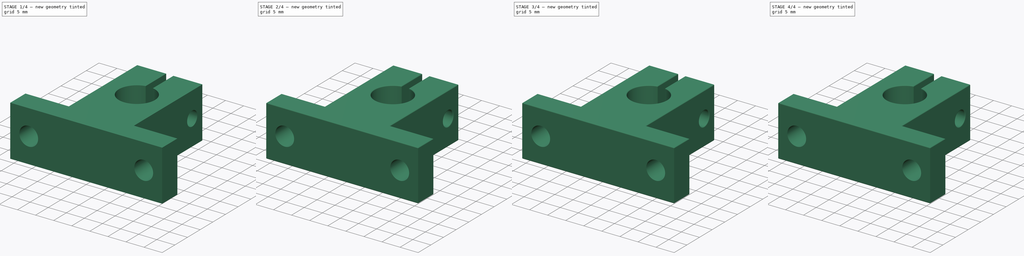
[diagram: build sequence overview — one tinted view per stage of 4, left to right]
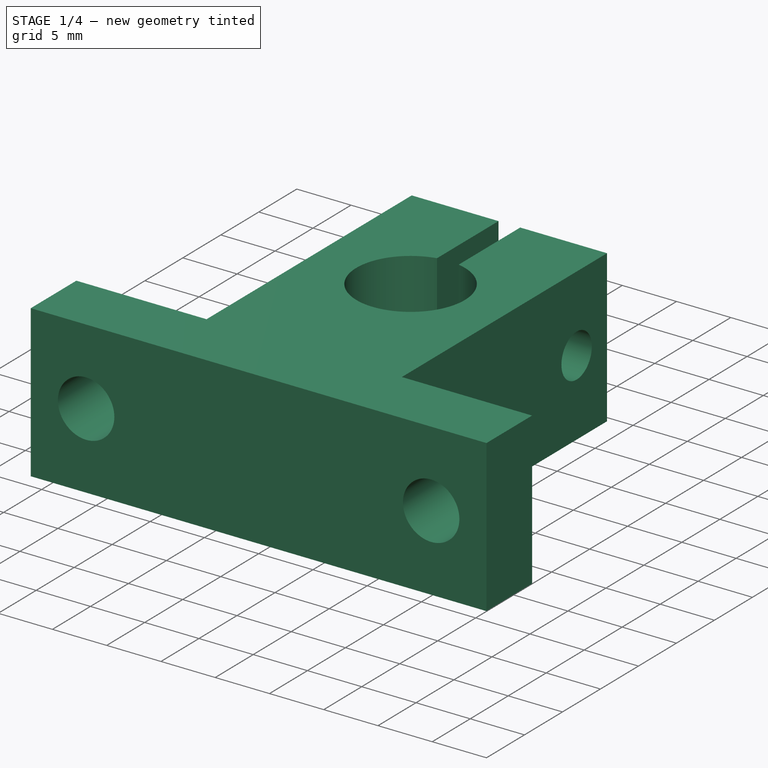
[diagram: stage 1 of 4 — iso view after this stage's code; geometry added in this stage tinted green]
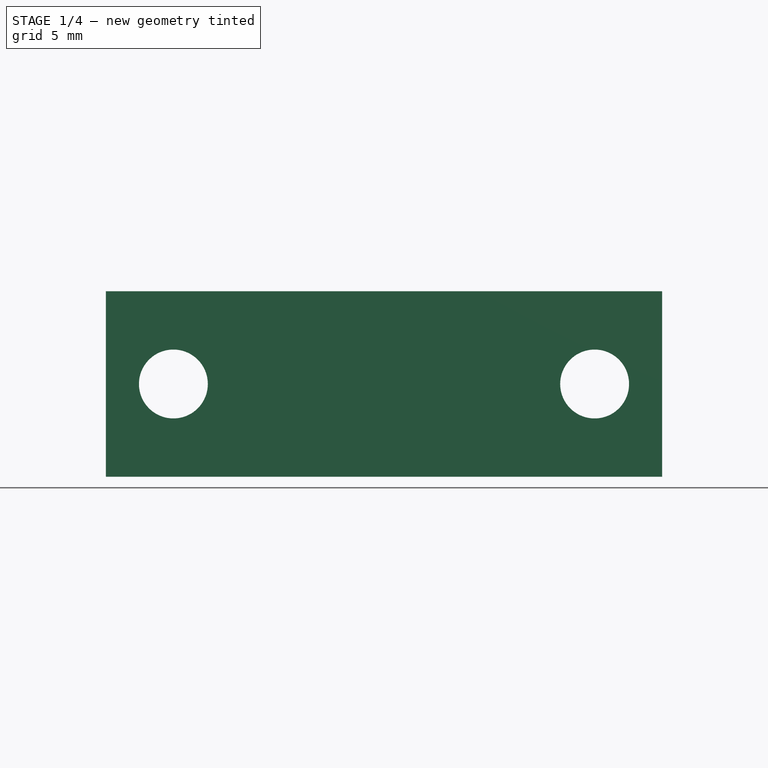
[diagram: stage 1 of 4 — front view after this stage's code; geometry added in this stage tinted green]
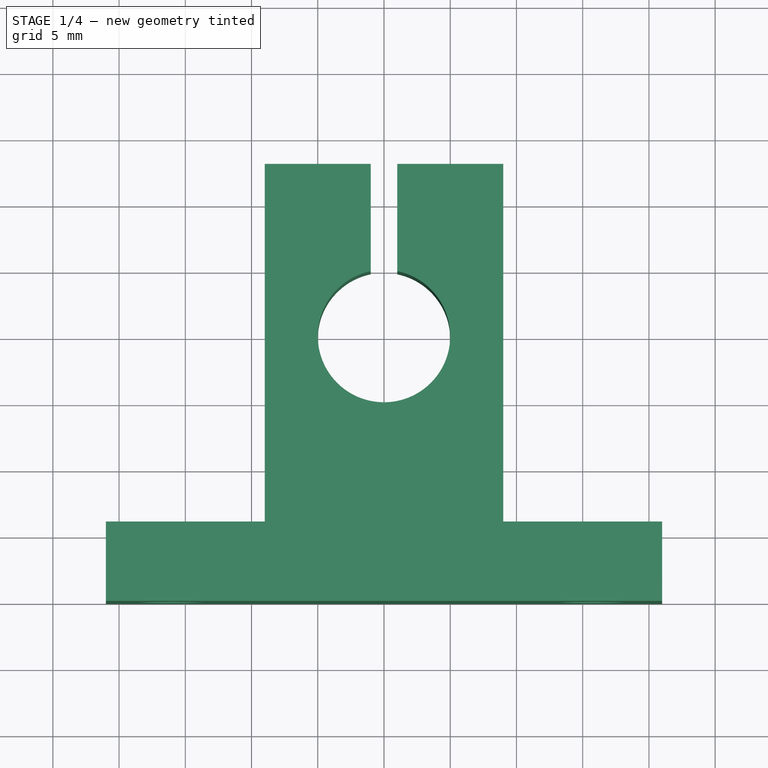
[diagram: stage 1 of 4 — top view after this stage's code; geometry added in this stage tinted green]
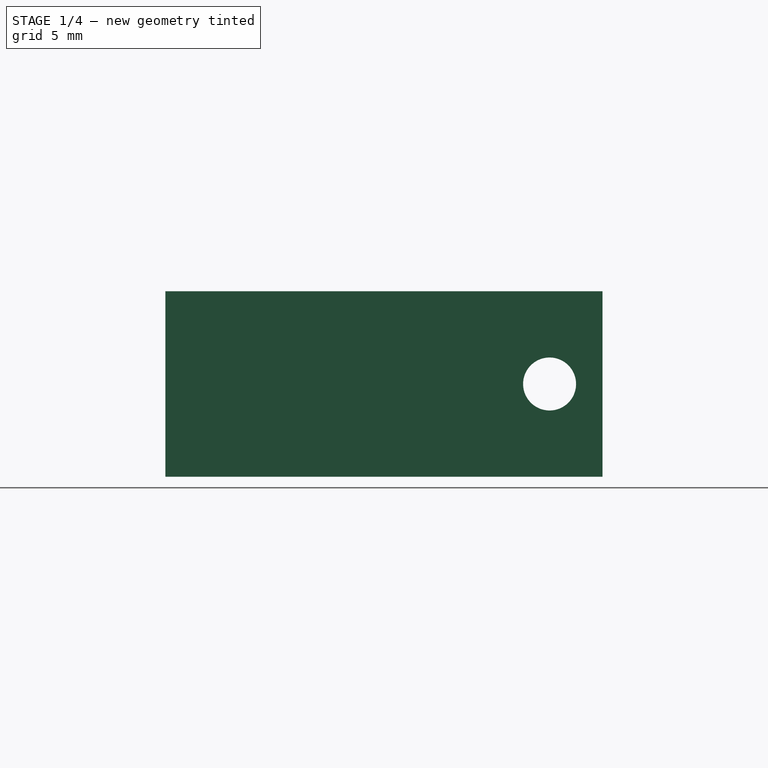
[diagram: stage 1 of 4 — right view after this stage's code; geometry added in this stage tinted green]
FCSTD DOCUMENT  (FreeCAD 0.14R3703 (Git))
Label: SK10
License: CC-BY 3.0
LicenseURL: http://creativecommons.org/licenses/by/3.0/
objects: PartDesign::Fillet×10, Sketcher::SketchObject×3, PartDesign::Pocket×2, PartDesign::Pad×1, Part::Feature×1
note: 20 computed .brp shape members not serialized (recipe doc carries the construction recipe); baked Part::Feature solids carry a one-line shape summary decoded from their .brp

FEATURE [Sketcher::SketchObject] Sketch
  sketch-geometry (13):
    g0: LineSegment StartX=9 StartY=13 StartZ=0 EndX=9 EndY=-14 EndZ=0
    g1: LineSegment StartX=9 StartY=-14 StartZ=0 EndX=21 EndY=-14 EndZ=0
    g2: LineSegment StartX=21 StartY=-14 StartZ=0 EndX=21 EndY=-20 EndZ=0
    g3: LineSegment StartX=21 StartY=-20 StartZ=0 EndX=-21 EndY=-20 EndZ=0
    g4: LineSegment StartX=-21 StartY=-20 StartZ=0 EndX=-21 EndY=-14 EndZ=0
    g5: LineSegment StartX=-21 StartY=-14 StartZ=0 EndX=-9 EndY=-14 EndZ=0
    g6: LineSegment StartX=-9 StartY=-14 StartZ=0 EndX=-9 EndY=13 EndZ=0
    g7: ArcOfCircle CenterX=0 CenterY=0 CenterZ=0 NormalX=0 NormalY=0 NormalZ=1 Radius=5 StartAngle=1.77215 EndAngle=7.65262
    g8: LineSegment [constr] StartX=-18.0561 StartY=-5 StartZ=0 EndX=24.4065 EndY=-5 EndZ=0
    g9: LineSegment StartX=-9 StartY=13 StartZ=0 EndX=-1 EndY=13 EndZ=0
    g10: LineSegment StartX=-1 StartY=13 StartZ=0 EndX=-1 EndY=4.89898 EndZ=0
    g11: LineSegment StartX=9 StartY=13 StartZ=0 EndX=1 EndY=13 EndZ=0
    g12: LineSegment StartX=1 StartY=13 StartZ=0 EndX=1 EndY=4.89898 EndZ=0
  constraints (37):
    c: Vertical(g0)
    c: Coincident(g0,g1)
    c: Horizontal(g1)
    c: Coincident(g1,g2)
    c: Coincident(g2,g3)
    c: Horizontal(g3)
    c: Coincident(g3,g4)
    c: Coincident(g5,g6)
    c: Symmetric(g3,g2,g-2)
    c: Vertical(g4)
    c: Vertical(g2)
    c: Horizontal(g5)
    c: Vertical(g6)
    c: Coincident(g5,g4)
    c: Symmetric(g1,g4,g-2)
    c: Symmetric(g6,g0,g-2)
    c: DistanceX(g3,g2) = 42
    c: DistanceX(g6,g0) = 18
    c: DistanceY(g2,g1) = 6
    c: DistanceY(g3,g6) = 33
    c: Coincident(g7,g-1)
    c: Radius(g7) = 5
    c: Horizontal(g8)
    c: Tangent(g8,g7)
    c: DistanceY(g8,g3) = -15
    c: Coincident(g9,g6)
    c: Horizontal(g9)
    c: Vertical(g10)
    c: Coincident(g11,g0)
    c: Horizontal(g11)
    c: Coincident(g12,g11)
    c: Vertical(g12)
    c: Coincident(g10,g9)
    c: Equal(g11,g9)
    c: DistanceX(g6,g9) = 8
    c: Coincident(g7,g10)
    c: Coincident(g7,g12)
FEATURE [PartDesign::Pad] Pad
  Length = 14
  Length2 = 10
  Sketch = -> Sketch
  Type = 0
FEATURE [Sketcher::SketchObject] Sketch001
  Placement = pos=(0,-20,0) rot=(1,0,0;1.5708rad)
  Support = -> Pad [Face4]
  sketch-geometry (2):
    g0: Circle CenterX=-15.9 CenterY=7 CenterZ=0 NormalX=0 NormalY=0 NormalZ=1 Radius=2.6
    g1: Circle CenterX=15.9 CenterY=7 CenterZ=0 NormalX=0 NormalY=0 NormalZ=1 Radius=2.6
  constraints (5):
    c: Symmetric(g1,g0,g-2)
    c: Radius(g0) = 2.6
    c: Equal(g0,g1)
    c: DistanceY(g-1,g0) = 7
    c: DistanceX(g-1,g0) = -15.9
FEATURE [PartDesign::Pocket] Pocket
  Length = 5
  Sketch = -> Sketch001
  Type = 1
FEATURE [Sketcher::SketchObject] Sketch002
  ExternalGeometry = -> [Pocket]
  Placement = pos=(9,0,0) rot=(0.57735,0.57735,0.57735;2.0944rad)
  Support = -> Pocket [Face1]
  sketch-geometry (1):
    g0: Circle CenterX=9 CenterY=7 CenterZ=0 NormalX=0 NormalY=0 NormalZ=1 Radius=2
  constraints (3):
    c: Radius(g0) = 2
    c: DistanceY(g-1,g0) = 7
    c: DistanceX(g0,g-3) = 4
FEATURE [PartDesign::Pocket] Pocket001
  Length = 5
  Sketch = -> Sketch002
  Type = 1
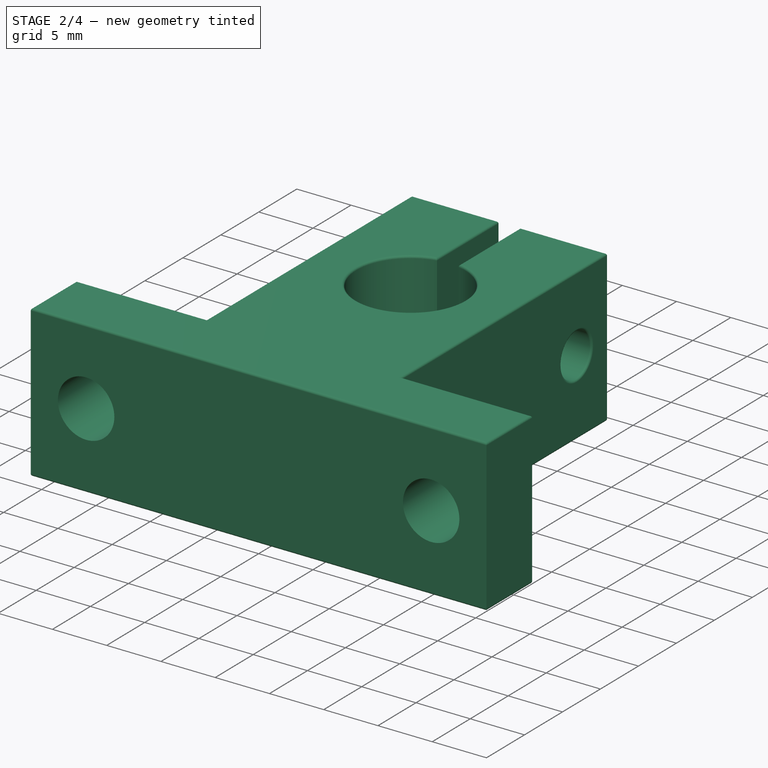
[diagram: stage 2 of 4 — iso view after this stage's code; geometry added in this stage tinted green]
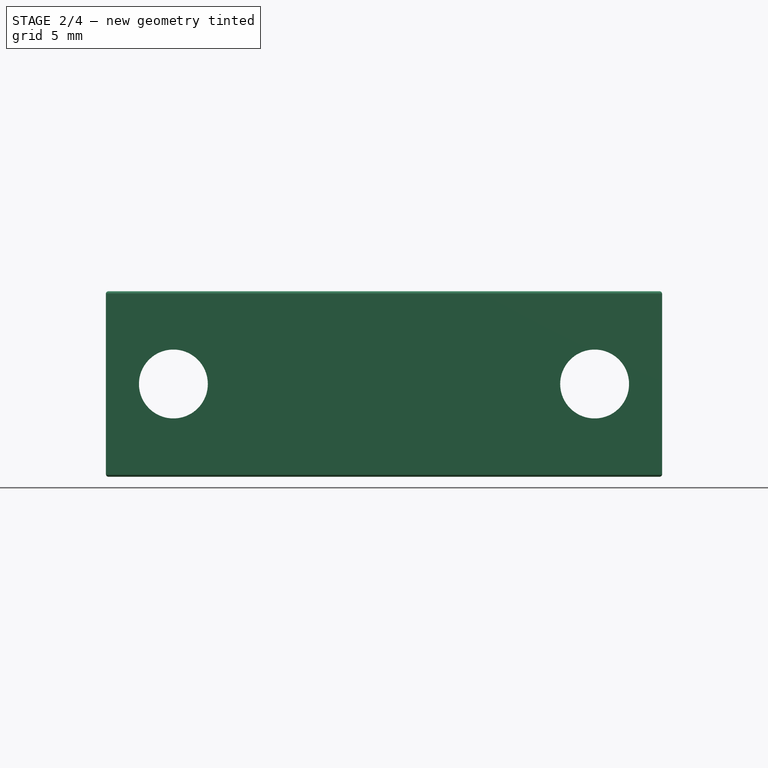
[diagram: stage 2 of 4 — front view after this stage's code; geometry added in this stage tinted green]
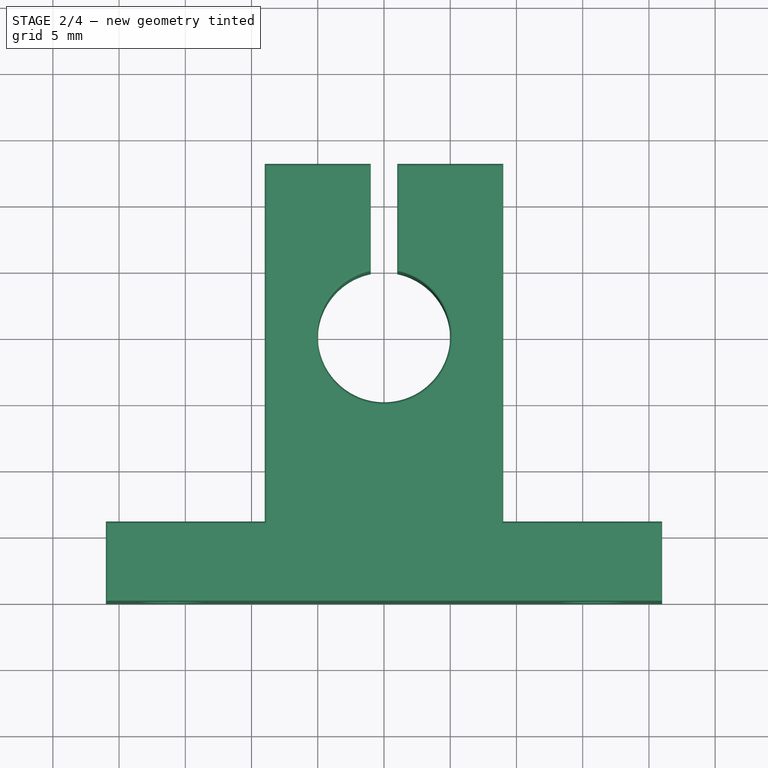
[diagram: stage 2 of 4 — top view after this stage's code; geometry added in this stage tinted green]
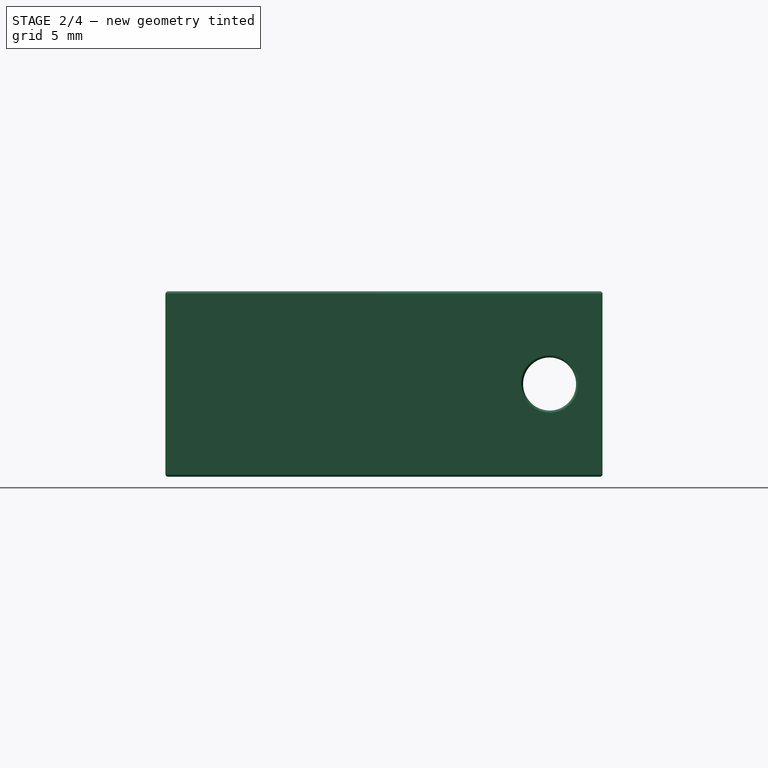
[diagram: stage 2 of 4 — right view after this stage's code; geometry added in this stage tinted green]
FEATURE [PartDesign::Fillet] Fillet
  Base = -> Pocket001 [Edge3,Edge19,Edge20,Edge21,Edge22,Edge23,Edge24,Edge25,Edge26,Edge27,Edge28,Edge8]
  Radius = 0.2
FEATURE [PartDesign::Fillet] Fillet001
  Base = -> Fillet [Edge3,Edge12,Edge13,Edge14,Edge15,Edge16,Edge17,Edge18,Edge19,Edge20,Edge21,Edge7]
  Radius = 0.2
FEATURE [PartDesign::Fillet] Fillet002
  Base = -> Fillet001 [Edge5]
  Radius = 0.2
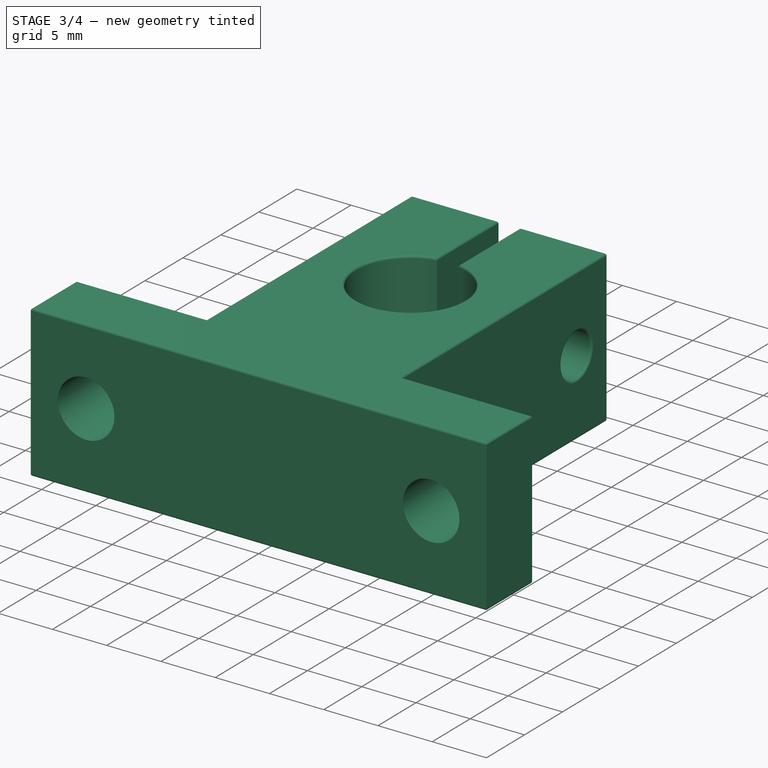
[diagram: stage 3 of 4 — iso view after this stage's code; geometry added in this stage tinted green]
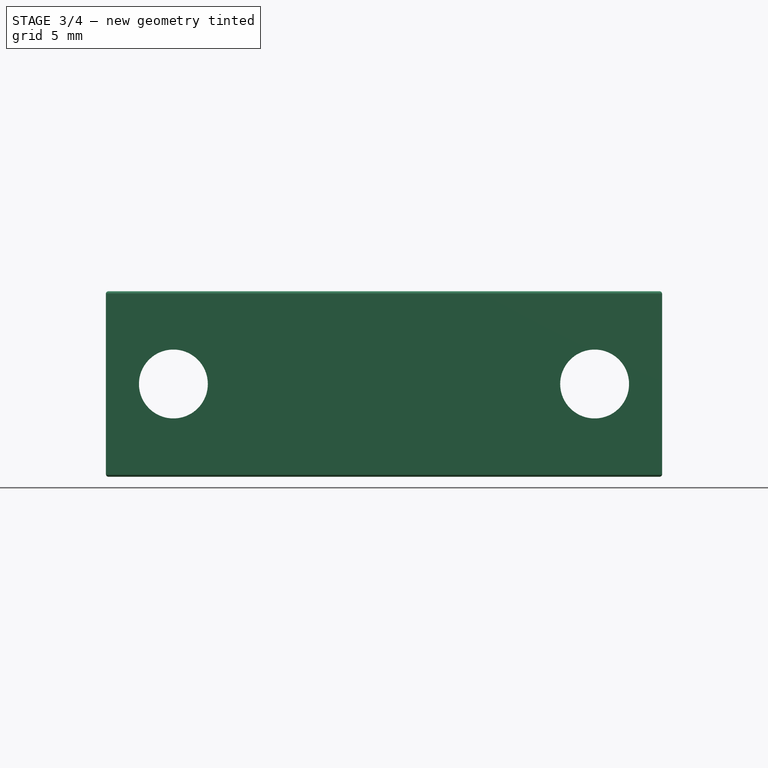
[diagram: stage 3 of 4 — front view after this stage's code; geometry added in this stage tinted green]
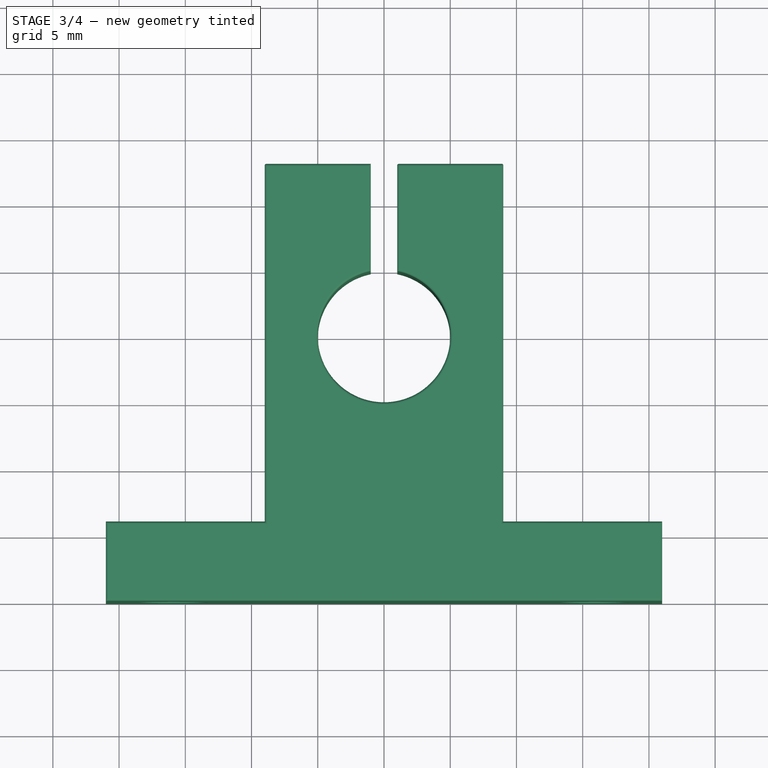
[diagram: stage 3 of 4 — top view after this stage's code; geometry added in this stage tinted green]
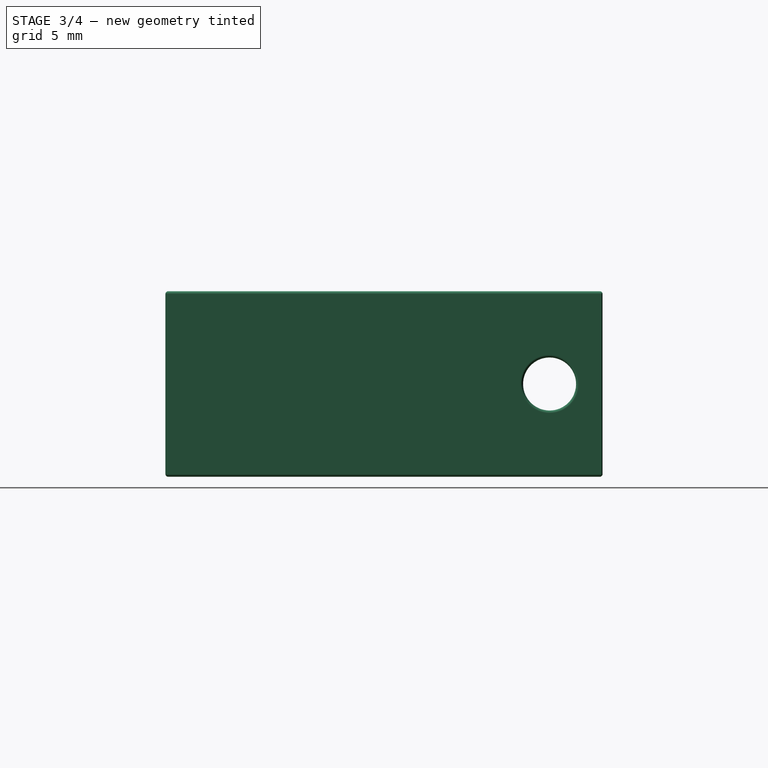
[diagram: stage 3 of 4 — right view after this stage's code; geometry added in this stage tinted green]
FEATURE [PartDesign::Fillet] Fillet003
  Base = -> Fillet002 [Edge96]
  Radius = 0.2
FEATURE [PartDesign::Fillet] Fillet004
  Base = -> Fillet003 [Edge94]
  Radius = 0.1
FEATURE [PartDesign::Fillet] Fillet005
  Base = -> Fillet004 [Edge88]
  Radius = 0.1
FEATURE [PartDesign::Fillet] Fillet006
  Base = -> Fillet005 [Edge80]
  Radius = 0.1
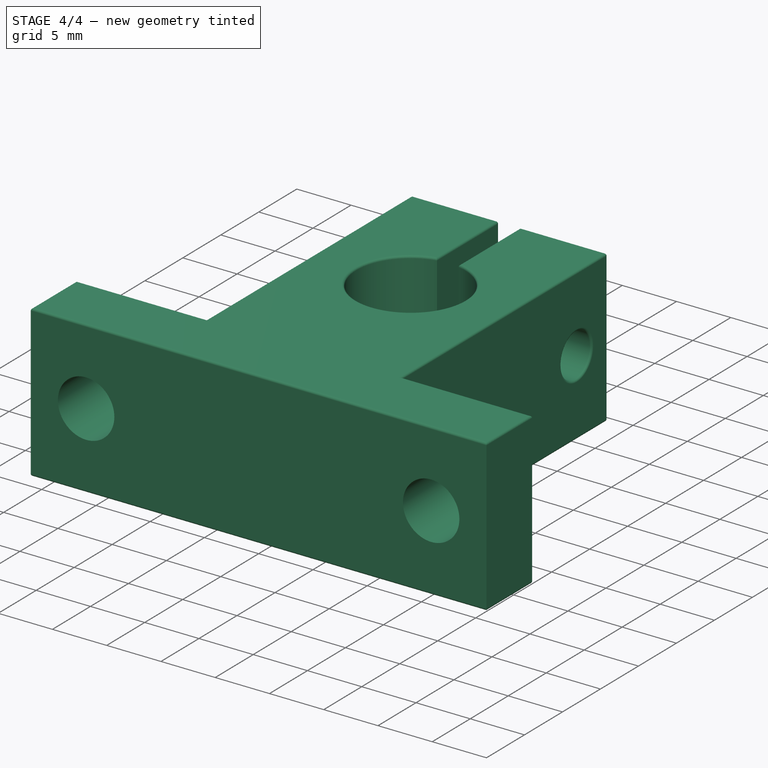
[diagram: stage 4 of 4 — iso view after this stage's code; geometry added in this stage tinted green]
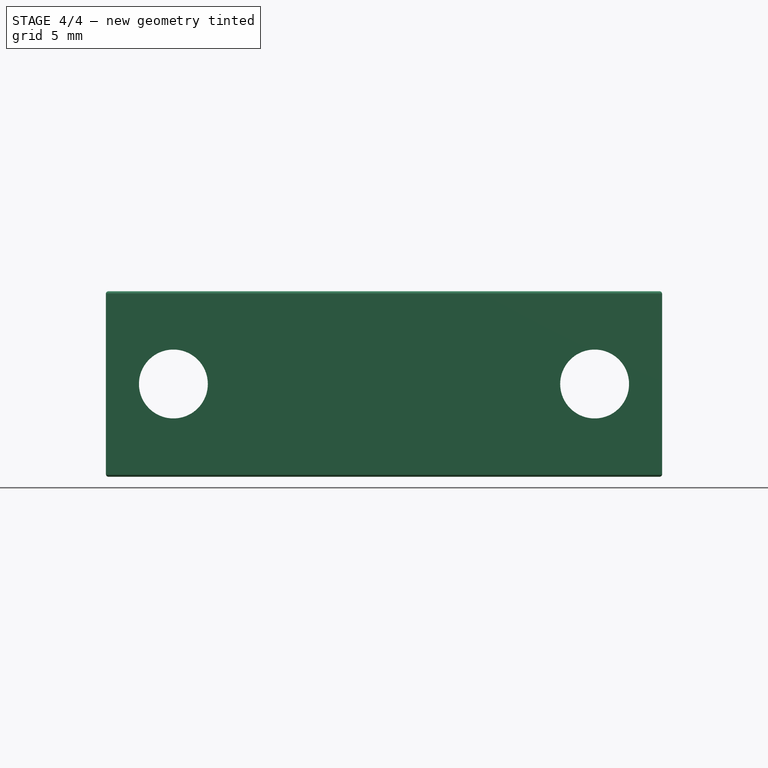
[diagram: stage 4 of 4 — front view after this stage's code; geometry added in this stage tinted green]
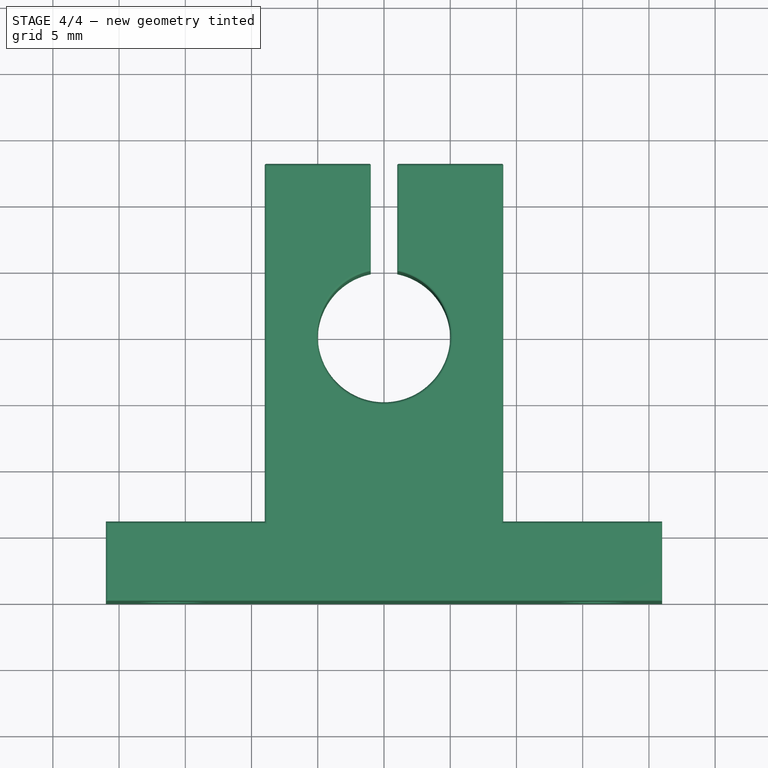
[diagram: stage 4 of 4 — top view after this stage's code; geometry added in this stage tinted green]
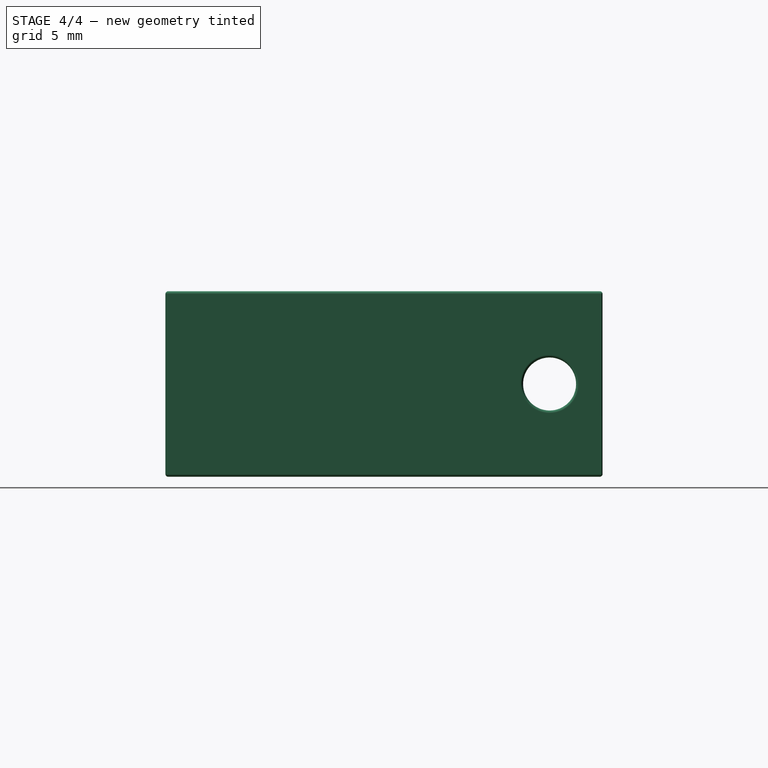
[diagram: stage 4 of 4 — right view after this stage's code; geometry added in this stage tinted green]
FEATURE [PartDesign::Fillet] Fillet007
  Base = -> Fillet006 [Edge86]
  Radius = 0.1
FEATURE [PartDesign::Fillet] Fillet008
  Base = -> Fillet007 [Edge92]
  Radius = 0.2
FEATURE [PartDesign::Fillet] Fillet009
  Base = -> Fillet008 [Edge105]
  Radius = 0.2
FEATURE [Part::Feature] Fillet009001  label="SK10"
  shape: bbox 42 x 33 x 14 mm, 58 faces (baked)
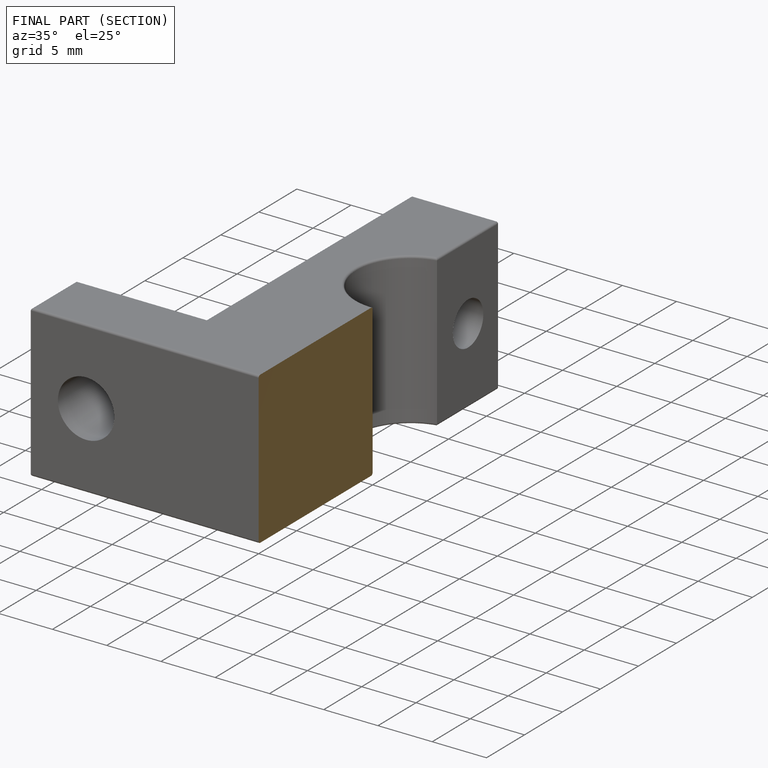
[diagram: finished part — half-section view (interior)]
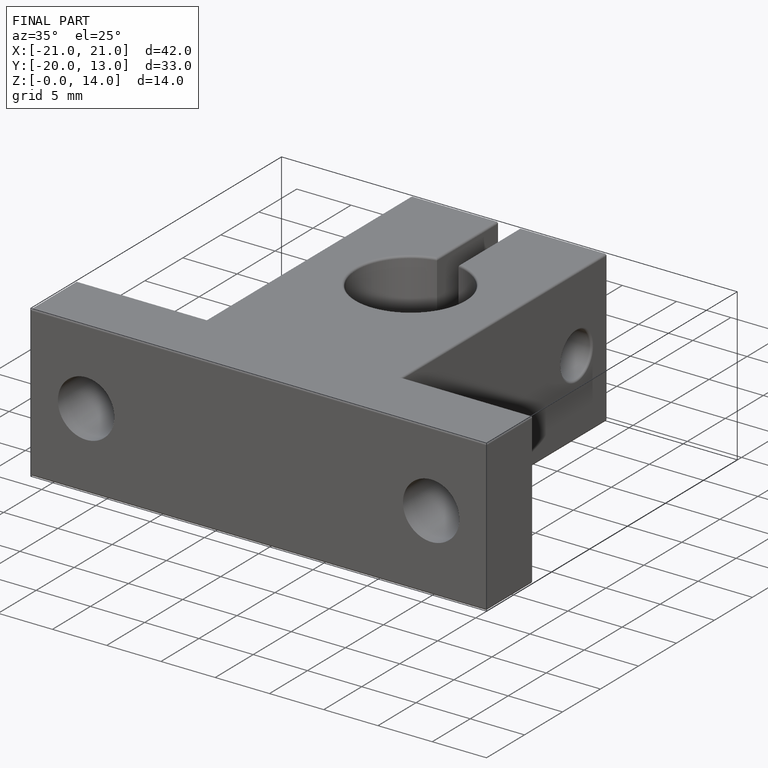
[diagram: finished part — iso view with bounding-box wireframe]
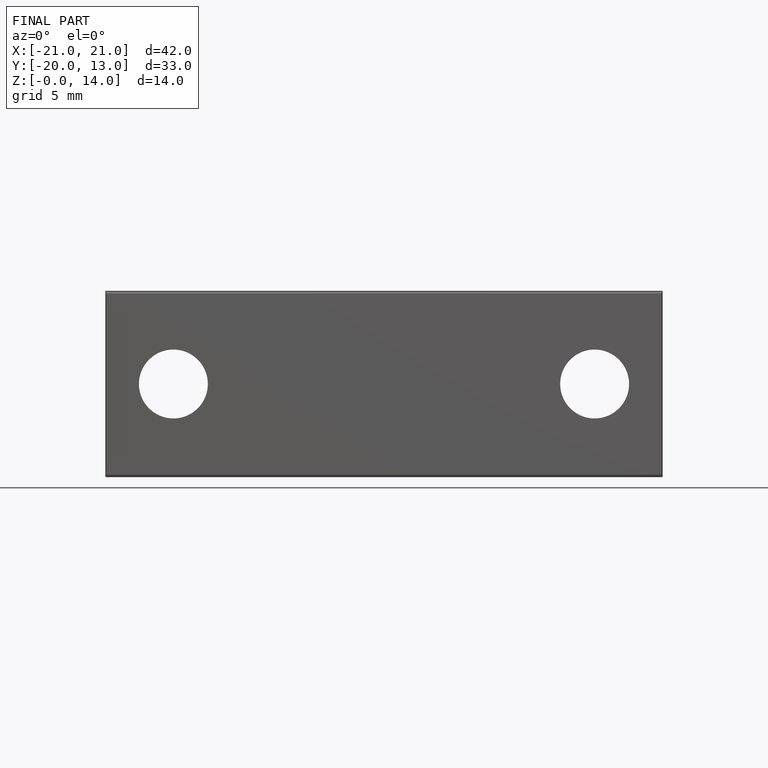
[diagram: finished part — front view with bounding-box wireframe]
